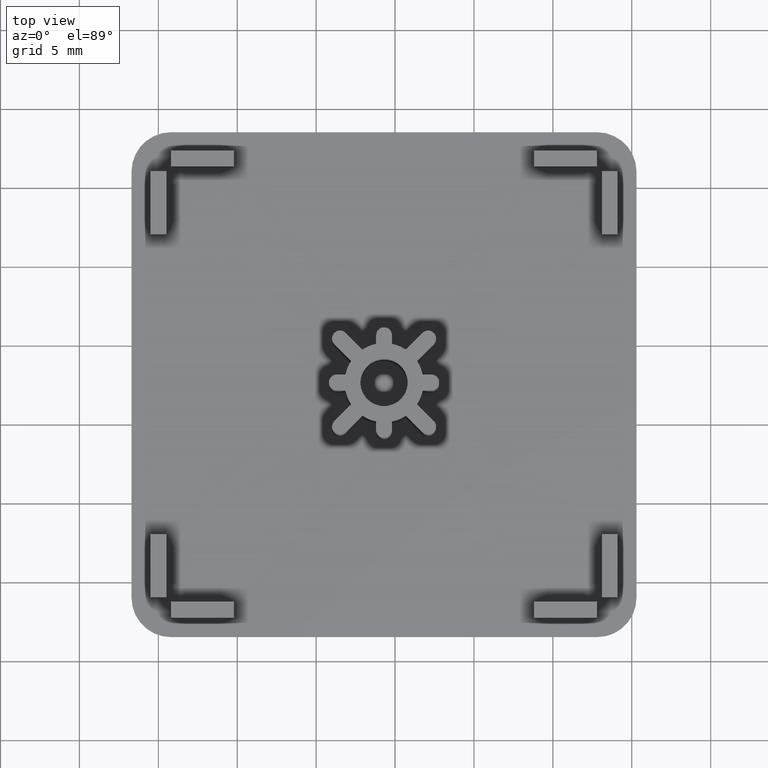
[diagram: clean part render]
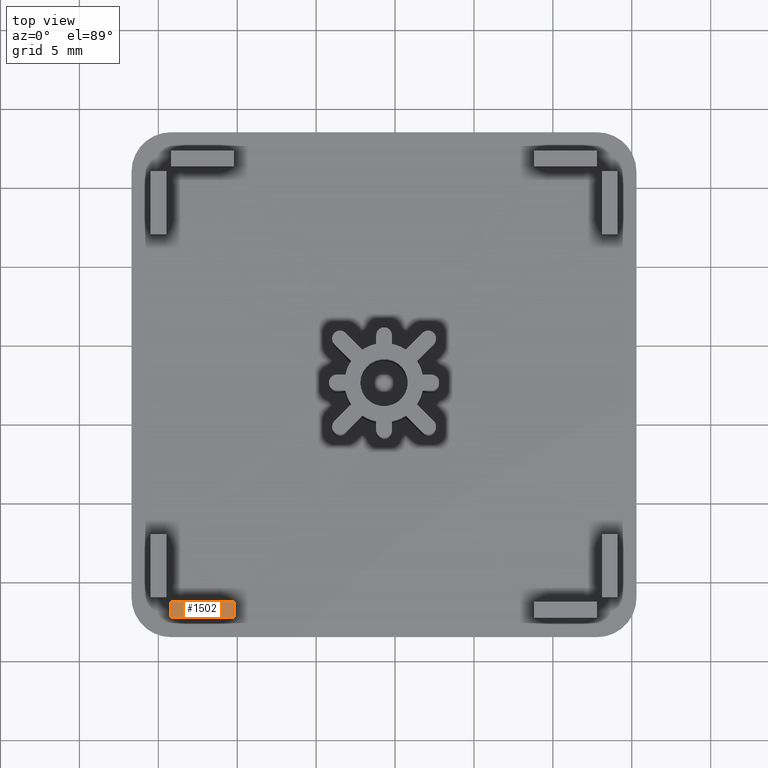
[diagram: same view with one face highlighted and labeled with its STEP entity id]
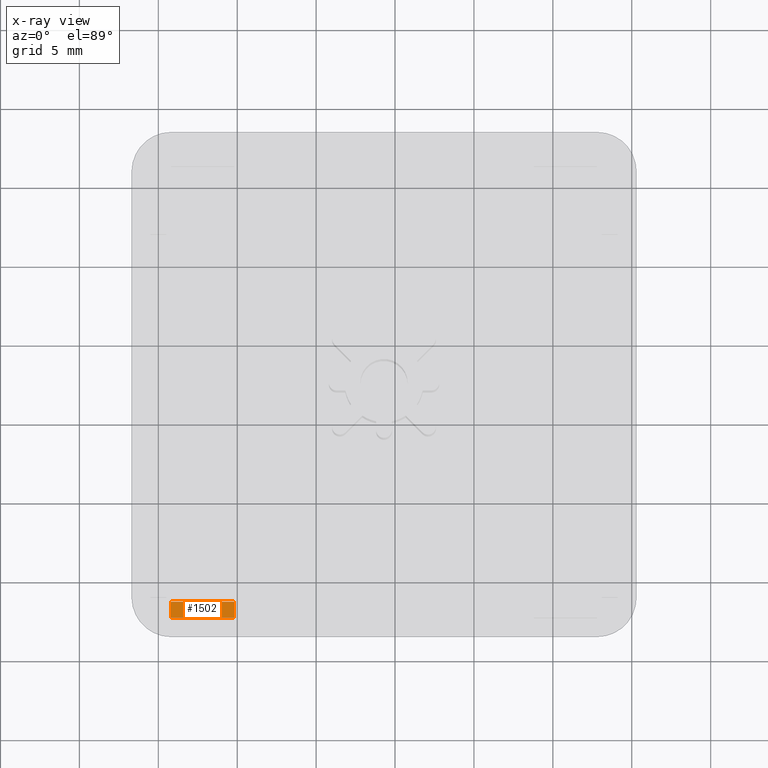
[diagram: x-ray of the same camera — body ghosted, the highlighted face saturated]
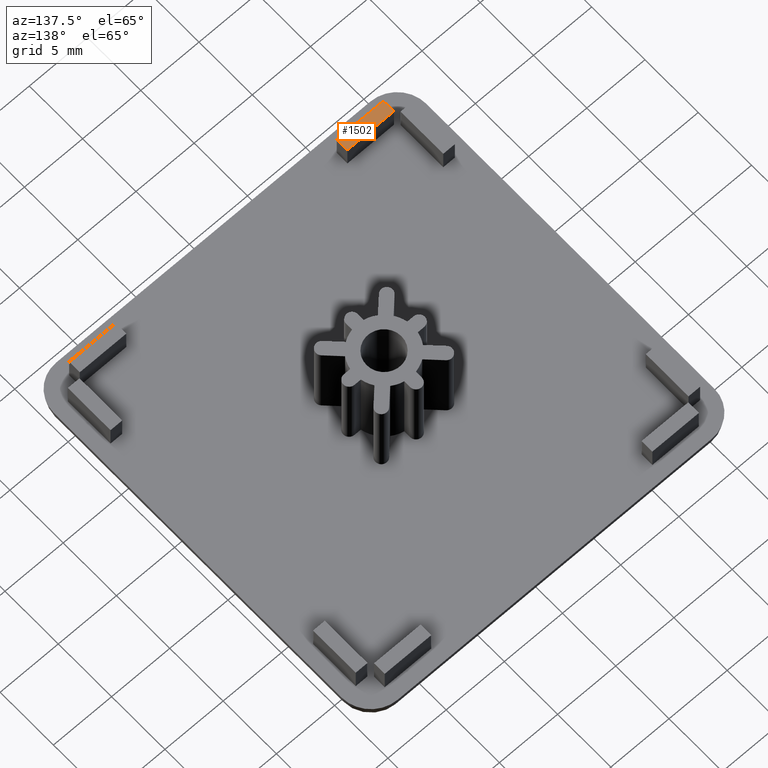
[diagram: same view with one face highlighted and labeled with its STEP entity id]
A machine part, top view. The second image highlights one B-rep face of the part: STEP entity #1502.
The next image is the same camera in x-ray: the body ghosted, the highlighted face saturated — about 0% of this face is hidden behind the body in this view.
A second angle (auxiliary view) of the same face is appended — the face is thin or edge-on in the first view.
In plain terms, the highlighted planar face has unit normal (0, 0, 1).
Its self-contained STEP definition (entity closure, byte-faithful):
#46=PLANE('',#1627);
#187=LINE('',#2408,#355);
#190=LINE('',#2413,#358);
#192=LINE('',#2417,#360);
#194=LINE('',#2420,#362);
#355=VECTOR('',#1944,1.);
#358=VECTOR('',#1949,4.);
#360=VECTOR('',#1953,0.999999999999999);
#362=VECTOR('',#1957,3.99999999999999);
#470=FACE_OUTER_BOUND('',#566,.T.);
#566=EDGE_LOOP('',(#1280,#1281,#1282,#1283));
#763=VERTEX_POINT('',#2406);
#764=VERTEX_POINT('',#2407);
#765=VERTEX_POINT('',#2412);
#766=VERTEX_POINT('',#2416);
#941=EDGE_CURVE('',#763,#764,#187,.T.);
#944=EDGE_CURVE('',#764,#765,#190,.T.);
#946=EDGE_CURVE('',#765,#766,#192,.T.);
#948=EDGE_CURVE('',#766,#763,#194,.T.);
#1280=ORIENTED_EDGE('',*,*,#941,.F.);
#1281=ORIENTED_EDGE('',*,*,#948,.F.);
#1282=ORIENTED_EDGE('',*,*,#946,.F.);
#1283=ORIENTED_EDGE('',*,*,#944,.F.);
#1502=ADVANCED_FACE('',(#470),#46,.T.);
#1627=AXIS2_PLACEMENT_3D('',#2421,#1958,#1959);
#1944=DIRECTION('',(0.,1.,0.));
#1949=DIRECTION('',(1.,-5.55111512312578E-16,0.));
#1953=DIRECTION('',(-4.44089209850063E-15,-1.,0.));
#1957=DIRECTION('',(-1.,0.,0.));
#1958=DIRECTION('center_axis',(0.,0.,1.));
#1959=DIRECTION('ref_axis',(1.,0.,0.));
#2406=CARTESIAN_POINT('',(-24.1990287283671,-12.2951458028759,4.5));
#2407=CARTESIAN_POINT('',(-24.1990287283671,-11.2951458028759,4.5));
#2408=CARTESIAN_POINT('',(-24.1990287283671,-11.2951458028759,4.5));
#2412=CARTESIAN_POINT('',(-20.1990287283671,-11.2951458028759,4.5));
#2413=CARTESIAN_POINT('',(-20.1990287283671,-11.2951458028759,4.5));
#2416=CARTESIAN_POINT('',(-20.1990287283671,-12.2951458028759,4.5));
#2417=CARTESIAN_POINT('',(-20.1990287283671,-12.2951458028759,4.5));
#2420=CARTESIAN_POINT('',(-24.1990287283671,-12.2951458028759,4.5));
#2421=CARTESIAN_POINT('Origin',(-22.1990287283671,-11.7951458028759,4.5));